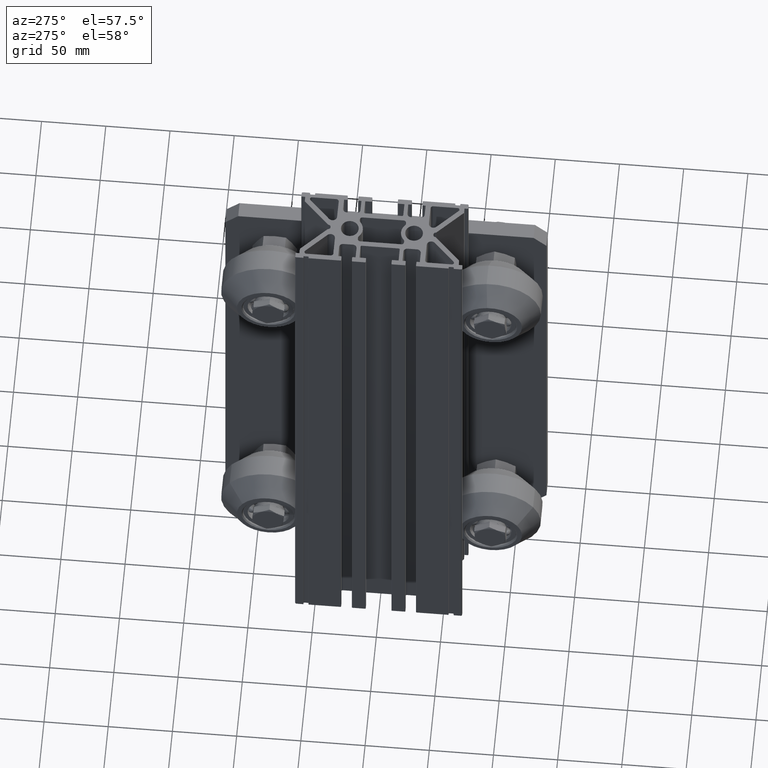
[diagram: clean part render]
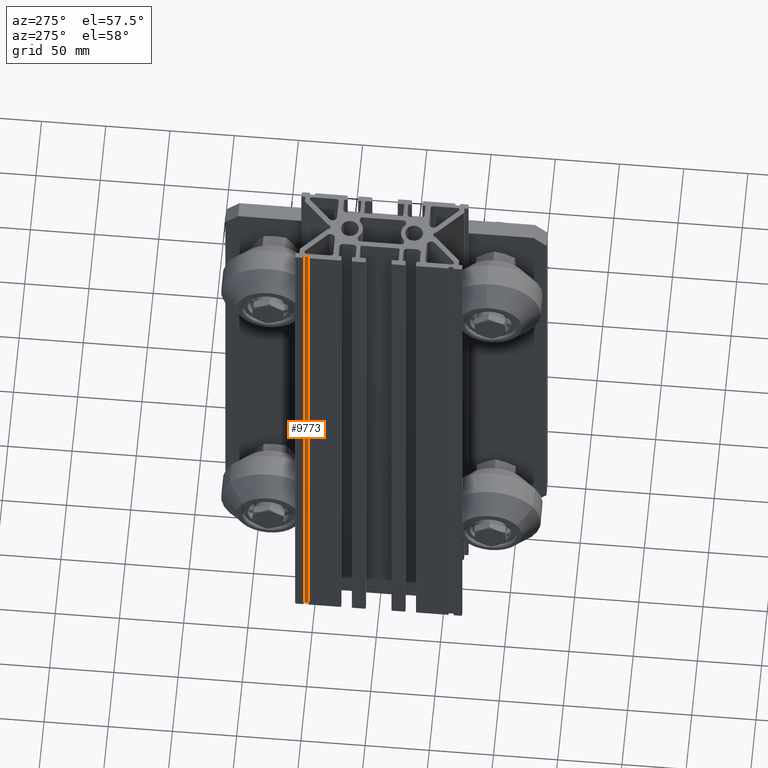
[diagram: same view with one face highlighted and labeled with its STEP entity id]
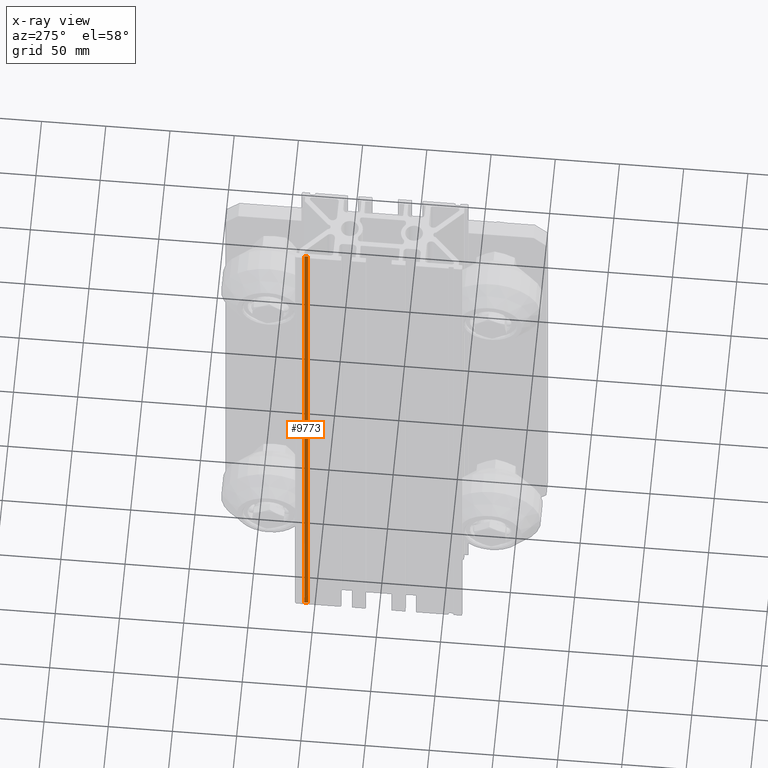
[diagram: x-ray of the same camera — body ghosted, the highlighted face saturated]
A machine part, auxiliary view. The second image highlights one B-rep face of the part: STEP entity #9773.
The next image is the same camera in x-ray: the body ghosted, the highlighted face saturated — about 0% of this face is hidden behind the body in this view.
In plain terms, the highlighted planar face has unit normal (-1, 0, 0).
Its self-contained STEP definition (entity closure, byte-faithful):
#688=FACE_OUTER_BOUND('',#1232,.T.);
#1232=EDGE_LOOP('',(#6912,#6913,#6914,#6915));
#2344=LINE('',#14809,#3113);
#2434=LINE('',#15102,#3203);
#2525=LINE('',#15386,#3294);
#2526=LINE('',#15388,#3295);
#3113=VECTOR('',#11809,10.);
#3203=VECTOR('',#12097,10.);
#3294=VECTOR('',#12310,10.);
#3295=VECTOR('',#12313,10.);
#3934=VERTEX_POINT('',#14806);
#3935=VERTEX_POINT('',#14808);
#4038=VERTEX_POINT('',#15099);
#4039=VERTEX_POINT('',#15101);
#4952=EDGE_CURVE('',#3934,#3935,#2344,.T.);
#5098=EDGE_CURVE('',#4038,#4039,#2434,.T.);
#5241=EDGE_CURVE('',#4038,#3935,#2525,.T.);
#5242=EDGE_CURVE('',#4039,#3934,#2526,.T.);
#6912=ORIENTED_EDGE('',*,*,#5241,.T.);
#6913=ORIENTED_EDGE('',*,*,#4952,.F.);
#6914=ORIENTED_EDGE('',*,*,#5242,.F.);
#6915=ORIENTED_EDGE('',*,*,#5098,.F.);
#9397=PLANE('',#10757);
#9773=ADVANCED_FACE('',(#688),#9397,.T.);
#10757=AXIS2_PLACEMENT_3D('',#15387,#12311,#12312);
#11809=DIRECTION('',(0.,-1.,0.));
#12097=DIRECTION('',(0.,1.,0.));
#12310=DIRECTION('',(0.,0.,1.));
#12311=DIRECTION('center_axis',(-1.,0.,0.));
#12312=DIRECTION('ref_axis',(0.,-1.,0.));
#12313=DIRECTION('',(0.,0.,1.));
#14806=CARTESIAN_POINT('',(-28.5000000000036,58.0000000000008,450.));
#14808=CARTESIAN_POINT('',(-28.5000000000036,55.0000000000005,450.));
#14809=CARTESIAN_POINT('',(-28.5000000000036,58.0000000000008,450.));
#15099=CARTESIAN_POINT('',(-28.5000000000036,55.0000000000005,-50.));
#15101=CARTESIAN_POINT('',(-28.5000000000036,58.0000000000008,-50.));
#15102=CARTESIAN_POINT('',(-28.5000000000036,58.0000000000008,-50.));
#15386=CARTESIAN_POINT('',(-28.5000000000036,55.0000000000005,0.));
#15387=CARTESIAN_POINT('Origin',(-28.5000000000036,58.0000000000008,0.));
#15388=CARTESIAN_POINT('',(-28.5000000000036,58.0000000000008,0.));